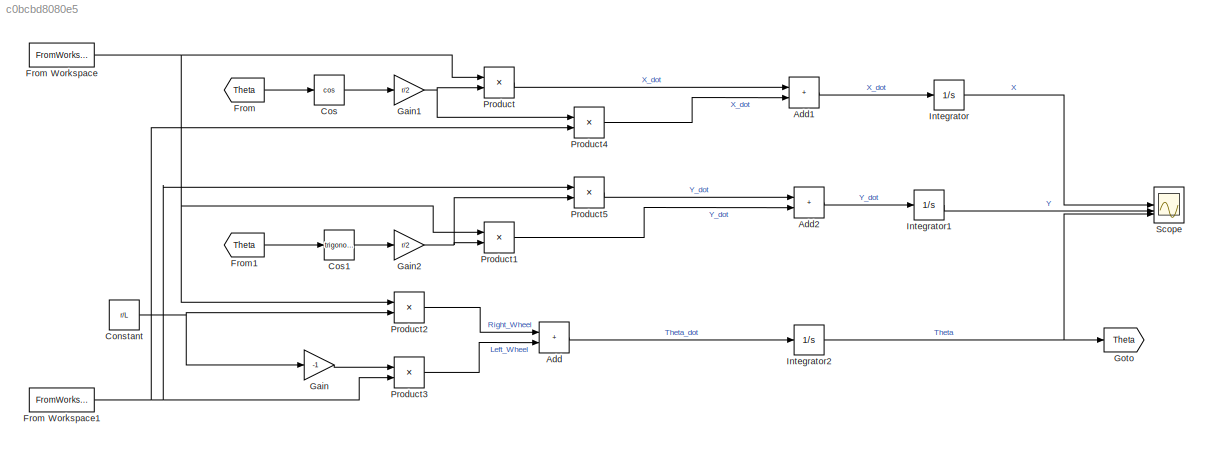
MODEL slx_c0bcbd8080e5
KIND model
CONFIG AbsTol = auto
CONFIG EnableMultiTasking = off
CONFIG FixedStep = auto
CONFIG MaxStep = auto
CONFIG MinStep = auto
CONFIG RelTol = 1e-3
CONFIG SampleTimeConstraint = Unconstrained
CONFIG SolverName = VariableStepAuto
CONFIG StartTime = 0.0
CONFIG StopTime = 10.0
BLOCK [Sum] Add
  IconShape = rectangular
BLOCK [Sum] Add1
  IconShape = rectangular
BLOCK [Sum] Add2
  IconShape = rectangular
BLOCK [Constant] Constant
  Value = r/L
BLOCK [Trigonometry] Cos
  Operator = cos
BLOCK [Trigonometry] Cos1
BLOCK [From] From
  GotoTag = Theta
BLOCK [FromWorkspace] From Workspace
  VariableName = W_R
BLOCK [FromWorkspace] From Workspace1
  VariableName = W_L
BLOCK [From] From1
  GotoTag = Theta
BLOCK [Gain] Gain
  Gain = -1
BLOCK [Gain] Gain1
  Gain = r/2
BLOCK [Gain] Gain2
  Gain = r/2
BLOCK [Goto] Goto
  GotoTag = Theta
BLOCK [Integrator] Integrator
  InitialCondition = x
BLOCK [Integrator] Integrator1
  InitialCondition = y
BLOCK [Integrator] Integrator2
  InitialCondition = theta
BLOCK [Product] Product
BLOCK [Product] Product1
BLOCK [Product] Product2
BLOCK [Product] Product3
BLOCK [Product] Product4
BLOCK [Product] Product5
BLOCK [Scope] Scope
  Floating = off
  NumInputPorts = 3
  ScopeSpecificationString = Simulink.scopes.TimeScopeBlockCfg('CurrentConfiguration', extmgr.ConfigurationSet(extmgr.Configuration('Core','General UI',true),extmgr.Configuration('Core','Source UI',true),extmgr.Configuration('Sources','WiredSimulink',true),extmgr.Configuration('Visuals','Time Domain',true,'SerializedDisplays',{struct('MinYLimReal','-0.3125','MaxYLimReal','2.8125','YLabelReal','','MinYLimMag','0.00000','MaxYLi...<+3043ch>
LINE Add1:1 -> Integrator:1
LINE Add2:1 -> Integrator1:1
LINE Add:1 -> Integrator2:1
NET Constant:1 -> Gain:1, Product2:2
LINE Cos1:1 -> Gain2:1
LINE Cos:1 -> Gain1:1
NET From Workspace1:1 -> Product3:2, Product4:2, Product5:1
NET From Workspace:1 -> Product1:1, Product2:1, Product:1
LINE From1:1 -> Cos1:1
LINE From:1 -> Cos:1
NET Gain1:1 -> Product4:1, Product:2
NET Gain2:1 -> Product1:2, Product5:2
LINE Gain:1 -> Product3:1
LINE Integrator1:1 -> Scope:2
NET Integrator2:1 -> Goto:1, Scope:3
LINE Integrator:1 -> Scope:1
LINE Product1:1 -> Add2:2
LINE Product2:1 -> Add:1
LINE Product3:1 -> Add:2
LINE Product4:1 -> Add1:2
LINE Product5:1 -> Add2:1
LINE Product:1 -> Add1:1
note: NET lines group one-source signal fan-out (src -> all destinations, sorted); 1:1 wires keep LINE
